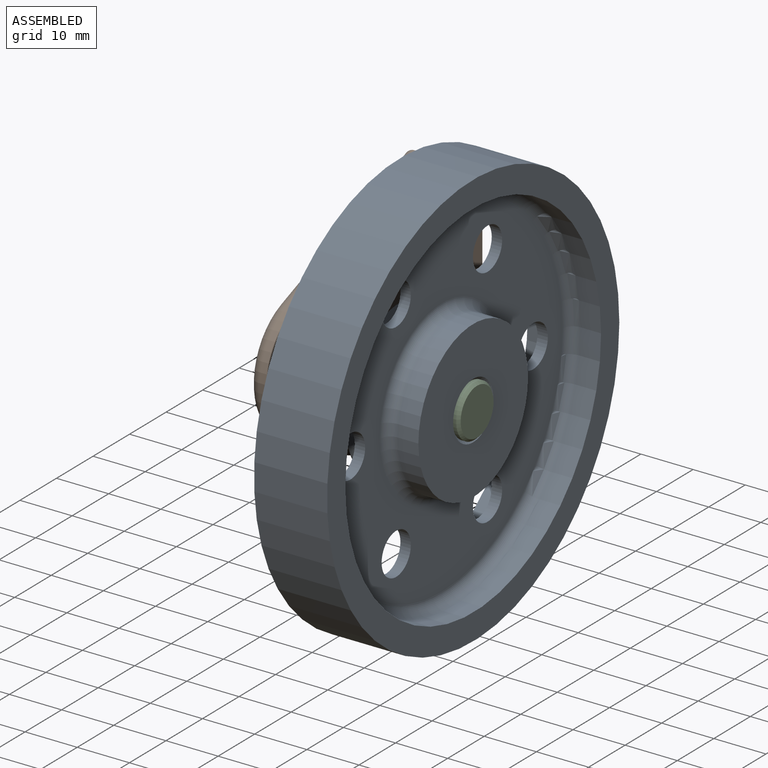
[diagram: assembled view]
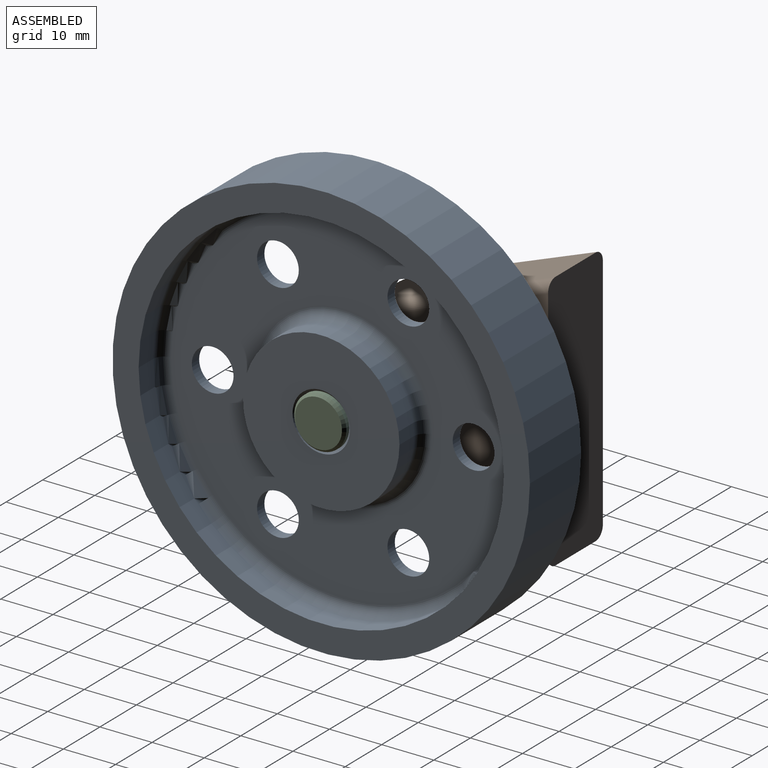
[diagram: assembled view, second angle]
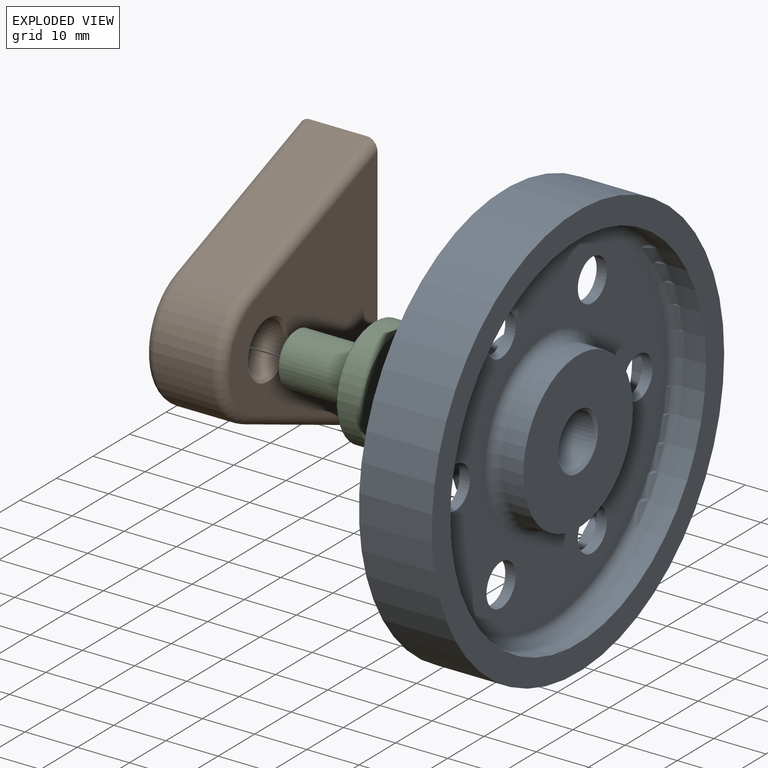
[diagram: exploded view]
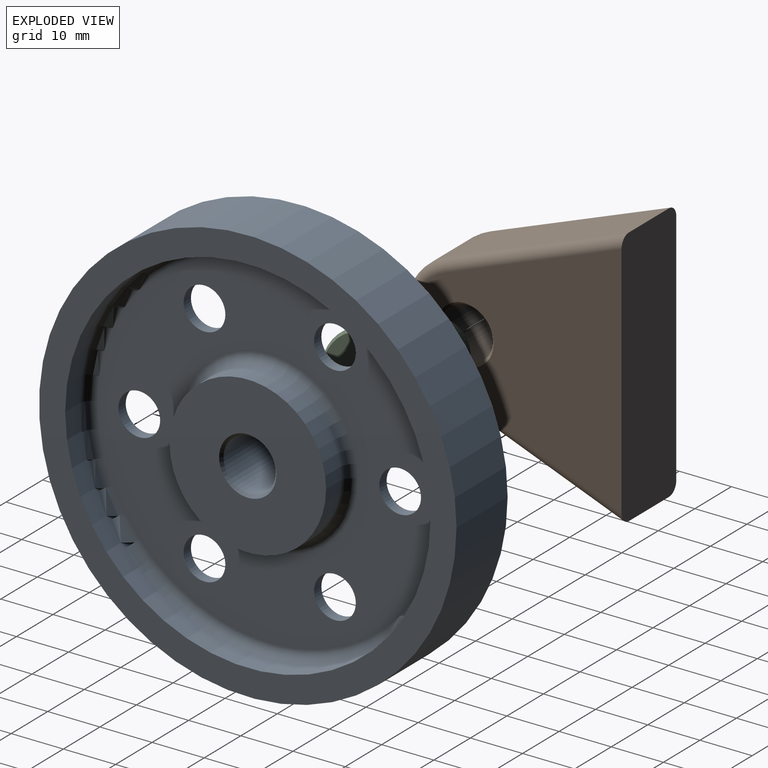
[diagram: exploded view, second angle]
ASSEMBLY  parts=3 mates=2
PART A: 24 faces, bbox 80x14x80 mm
  f0: cylinder r=40mm len=80mm, axis (0,-1,0), area 3518.6mm2, adj f1,f11
  f1: plane 80x80mm, normal (0,-1,0), area 1178.1mm2, adj f0,f2
  f2: cylinder r=35mm len=70mm, axis (0,-1,0), area 879.6mm2, adj f1,f20
  f3: plane 66x66mm, normal (0,-1,0), area 2211.7mm2, adj f14,f15,f16,f17,f18,f19,f20,f21
  f4: cylinder r=15mm len=30mm, axis (0,-1,0), area 377mm2, adj f5,f21
  f5: plane 30x30mm, normal (0,-1,0), area 611.8mm2, adj f4,f12
  f6: cylinder r=5mm len=13mm, axis (0,-1,0), area 408.4mm2, adj f12,f13
  f7: plane 30x30mm, normal (0,1,0), area 611.8mm2, adj f8,f13
  f8: cylinder r=15mm len=30mm, axis (0,-1,0), area 377mm2, adj f7,f22
  f9: plane 66x66mm, normal (0,1,0), area 2211.7mm2, adj f14,f15,f16,f17,f18,f19,f22,f23
  f10: cylinder r=35mm len=70mm, axis (0,-1,0), area 879.6mm2, adj f11,f23
  f11: plane 80x80mm, normal (0,1,0), area 1178.1mm2, adj f0,f10
  f12: cone r=5mm half-angle=45deg, axis (0,-1,0), area 23.3mm2, adj f5,f6
  f13: cone r=5.5mm half-angle=45deg, axis (0,1,0), area 23.3mm2, adj f6,f7
  f14: cylinder r=4mm len=8mm, axis (0,-1,0), area 50.3mm2, adj f3,f9
  f15: cylinder r=4mm len=8mm, axis (0,-1,0), area 50.3mm2, adj f3,f9
  f16: cylinder r=4mm len=8mm, axis (0,-1,0), area 50.3mm2, adj f3,f9
  f17: cylinder r=4mm len=8mm, axis (0,-1,0), area 50.3mm2, adj f3,f9
  f18: cylinder r=4mm len=8mm, axis (0,-1,0), area 50.3mm2, adj f3,f9
  f19: cylinder r=4mm len=8mm, axis (0,-1,0), area 50.3mm2, adj f3,f9
  f20: torus R=33mm, axis (0,1,0), area 676.5mm2, adj f2,f3
  f21: torus R=17mm, axis (0,1,0), area 310.4mm2, adj f3,f4
  f22: torus R=17mm, axis (0,1,0), area 310.4mm2, adj f8,f9
  f23: torus R=33mm, axis (0,1,0), area 676.5mm2, adj f9,f10
PART B: 15 faces, bbox 50x44.3x15 mm
  f0: plane 34.51x13.34mm, normal (-0.93,0.36,0), area 407mm2, adj f1,f3,f9,f12
  f1: plane 50x15mm, normal (0,-1,0), area 746.3mm2, adj f0,f2,f5,f6,f7,f9,f10,f12
  f2: plane 34.51x13.34mm, normal (0.93,0.36,0), area 407mm2, adj f1,f3,f7,f10
  f3: cylinder r=12.5mm len=23.32mm, axis (0,0,-1), area 330.5mm2, adj f0,f2,f8,f11
  f4: cylinder r=5mm len=14mm, axis (0,0,-1), area 439.8mm2, adj f13,f14
  f5: plane 45.71x40.5mm, normal (0,0,1), area 1103.5mm2, adj f1,f10,f11,f12,f14
  f6: plane 45.71x40.5mm, normal (0,0,-1), area 1103.5mm2, adj f1,f7,f8,f9,f13
  f7: cylinder r=2mm len=35.23mm, axis (-0.36,0.93,0), area 115.3mm2, adj f1,f2,f6,f8
  f8: torus R=10.5mm, axis (0,0,1), area 88.9mm2, adj f3,f6,f7,f9
  f9: cylinder r=2mm len=35.23mm, axis (-0.36,-0.93,0), area 115.3mm2, adj f0,f1,f6,f8
  f10: cylinder r=2mm len=35.23mm, axis (0.36,-0.93,0), area 115.3mm2, adj f1,f2,f5,f11
  f11: torus R=10.5mm, axis (0,0,1), area 88.9mm2, adj f3,f5,f10,f12
  f12: cylinder r=2mm len=35.23mm, axis (0.36,0.93,0), area 115.3mm2, adj f0,f1,f5,f11
  f13: cone r=5.5mm half-angle=45deg, axis (0,0,-1), area 23.3mm2, adj f4,f6
  f14: cone r=5mm half-angle=45deg, axis (0,0,1), area 23.3mm2, adj f4,f5
PART C: 11 faces, bbox 35x20.9x20.9 mm
  f0: plane 9x9mm, normal (-1,0,0), area 63.6mm2, adj f10
  f1: plane 9x9mm, normal (1,0,0), area 63.6mm2, adj f7
  f2: cylinder r=5mm len=14.5mm, axis (-1,0,0), area 455.5mm2, adj f3,f7
  f3: plane 19.86x19.86mm, normal (1,0,0), area 231.4mm2, adj f2,f8
  f4: cylinder r=10.43mm len=20.86mm, axis (-1,0,0), area 262.2mm2, adj f8,f9
  f5: plane 19.86x19.86mm, normal (-1,0,0), area 231.4mm2, adj f6,f9
  f6: cylinder r=5mm len=14.5mm, axis (-1,0,0), area 455.5mm2, adj f5,f10
  f7: cone r=5mm half-angle=45deg, axis (-1,0,0), area 21.1mm2, adj f1,f2
  f8: cone r=10.43mm half-angle=45deg, axis (-1,0,0), area 45.2mm2, adj f3,f4
  f9: cone r=9.93mm half-angle=45deg, axis (1,0,0), area 45.2mm2, adj f4,f5
  f10: cone r=4.5mm half-angle=45deg, axis (1,0,0), area 21.1mm2, adj f0,f6
PLACE A rot(axis=(0.58,-0.58,0.58),120deg) t=(-6.47,-5.21,-36.14)mm
PLACE B rot(axis=(0.71,0,-0.71),180deg) t=(-26.22,-5.21,-36.14)mm
PLACE C rot(axis=(-0.92,0.39,-0.02),0deg) t=(1.28,-5.21,-36.14)mm
MATE fastened C.f2 <-> B.f3  axis (-1,0,0) through (-18.72,-5.21,-36.14)mm
MATE revolute A.f0 <-> C.f2  axis (1,0,0) through (-6.47,-5.21,-36.14)mm
